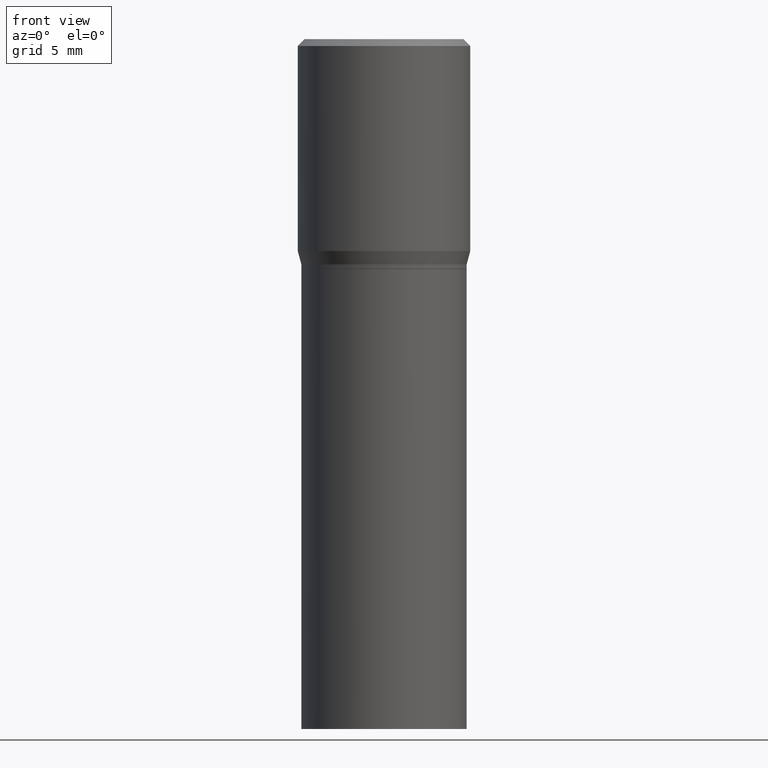
[diagram: clean part render]
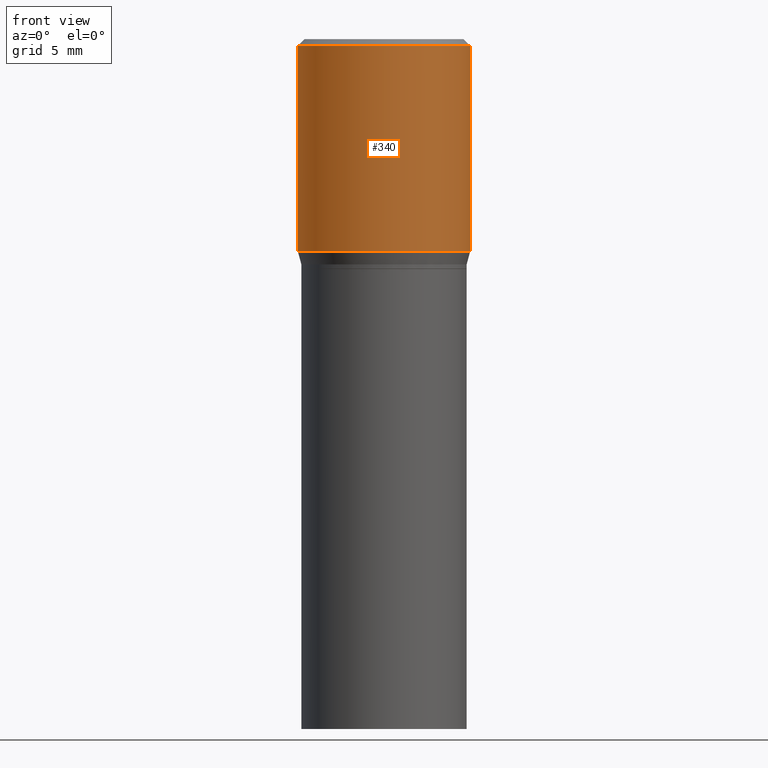
[diagram: same view with one face highlighted and labeled with its STEP entity id]
A machine part, front view. The second image highlights one B-rep face of the part: STEP entity #340.
In plain terms, the highlighted cylindrical surface (partial cylindrical patch) has radius 4.7625 mm, axis along (-0, 0, 1).
Its self-contained STEP definition (entity closure, byte-faithful):
#6 = AXIS2_PLACEMENT_3D ( 'NONE', #323, #236, #451 ) ;
#13 = VERTEX_POINT ( 'NONE', #335 ) ;
#26 = CIRCLE ( 'NONE', #125, 0.1875000000000000278 ) ;
#34 = DIRECTION ( 'NONE',  ( 1.000000000000000000, -6.982962677686265922E-15, 0.000000000000000000 ) ) ;
#82 = VERTEX_POINT ( 'NONE', #171 ) ;
#84 = DIRECTION ( 'NONE',  ( -2.445468806185136877E-29, 3.491481338843145188E-15, 1.000000000000000000 ) ) ;
#120 = EDGE_LOOP ( 'NONE', ( #158, #189, #368, #322 ) ) ;
#125 = AXIS2_PLACEMENT_3D ( 'NONE', #466, #143, #34 ) ;
#129 = CARTESIAN_POINT ( 'NONE',  ( 3.668203209277705088E-31, -5.237222008264718399E-17, -0.01499999999999999944 ) ) ;
#143 = DIRECTION ( 'NONE',  ( -2.445468806185136597E-29, 3.491481338843145583E-15, 1.000000000000000000 ) ) ;
#158 = ORIENTED_EDGE ( 'NONE', *, *, #238, .F. ) ;
#161 = DIRECTION ( 'NONE',  ( 1.000000000000000000, -6.982962677686265922E-15, 0.000000000000000000 ) ) ;
#171 = CARTESIAN_POINT ( 'NONE',  ( 0.1875000000000000278, -1.361677722148822285E-15, -0.01499999999999999944 ) ) ;
#188 = CARTESIAN_POINT ( 'NONE',  ( 0.1875000000000000278, -2.918494349247435201E-15, -0.4608900037009628914 ) ) ;
#189 = ORIENTED_EDGE ( 'NONE', *, *, #259, .T. ) ;
#200 = FACE_OUTER_BOUND ( 'NONE', #120, .T. ) ;
#218 = AXIS2_PLACEMENT_3D ( 'NONE', #129, #274, #161 ) ;
#236 = DIRECTION ( 'NONE',  ( -2.445468806185136597E-29, 3.491481338843145583E-15, 1.000000000000000000 ) ) ;
#238 = EDGE_CURVE ( 'NONE', #359, #13, #358, .T. ) ;
#258 = CIRCLE ( 'NONE', #218, 0.1875000000000000278 ) ;
#259 = EDGE_CURVE ( 'NONE', #359, #267, #26, .T. ) ;
#267 = VERTEX_POINT ( 'NONE', #188 ) ;
#272 = CARTESIAN_POINT ( 'NONE',  ( 0.1875000000000000278, -1.309305502066175008E-15, 9.142831454617381013E-30 ) ) ;
#274 = DIRECTION ( 'NONE',  ( -2.445468806185136597E-29, 3.491481338843145583E-15, 1.000000000000000000 ) ) ;
#295 = EDGE_CURVE ( 'NONE', #267, #82, #301, .T. ) ;
#301 = LINE ( 'NONE', #272, #459 ) ;
#318 = CARTESIAN_POINT ( 'NONE',  ( -0.1875000000000000278, 1.332267629550188046E-15, -9.223003294227947991E-30 ) ) ;
#322 = ORIENTED_EDGE ( 'NONE', *, *, #329, .F. ) ;
#323 = CARTESIAN_POINT ( 'NONE',  ( 0.000000000000000000, 0.000000000000000000, 0.000000000000000000 ) ) ;
#329 = EDGE_CURVE ( 'NONE', #13, #82, #258, .T. ) ;
#335 = CARTESIAN_POINT ( 'NONE',  ( -0.1875000000000000278, 5.014870959182341138E-16, -0.01499999999999999944 ) ) ;
#340 = ADVANCED_FACE ( 'NONE', ( #200 ), #403, .T. ) ;
#353 = DIRECTION ( 'NONE',  ( -2.445468806185136877E-29, 3.491481338843145188E-15, 1.000000000000000000 ) ) ;
#358 = LINE ( 'NONE', #318, #397 ) ;
#359 = VERTEX_POINT ( 'NONE', #366 ) ;
#366 = CARTESIAN_POINT ( 'NONE',  ( -0.1875000000000000278, -2.769212176310719994E-16, -0.4608900037009628914 ) ) ;
#368 = ORIENTED_EDGE ( 'NONE', *, *, #295, .T. ) ;
#397 = VECTOR ( 'NONE', #353, 39.37007874015748143 ) ;
#403 = CYLINDRICAL_SURFACE ( 'NONE', #6, 0.1875000000000000278 ) ;
#451 = DIRECTION ( 'NONE',  ( 1.000000000000000000, -6.982962677686265922E-15, 4.876176775795935793E-29 ) ) ;
#459 = VECTOR ( 'NONE', #84, 39.37007874015748143 ) ;
#466 = CARTESIAN_POINT ( 'NONE',  ( 1.127092127133256822E-29, -1.609188847181260193E-15, -0.4608900037009628914 ) ) ;